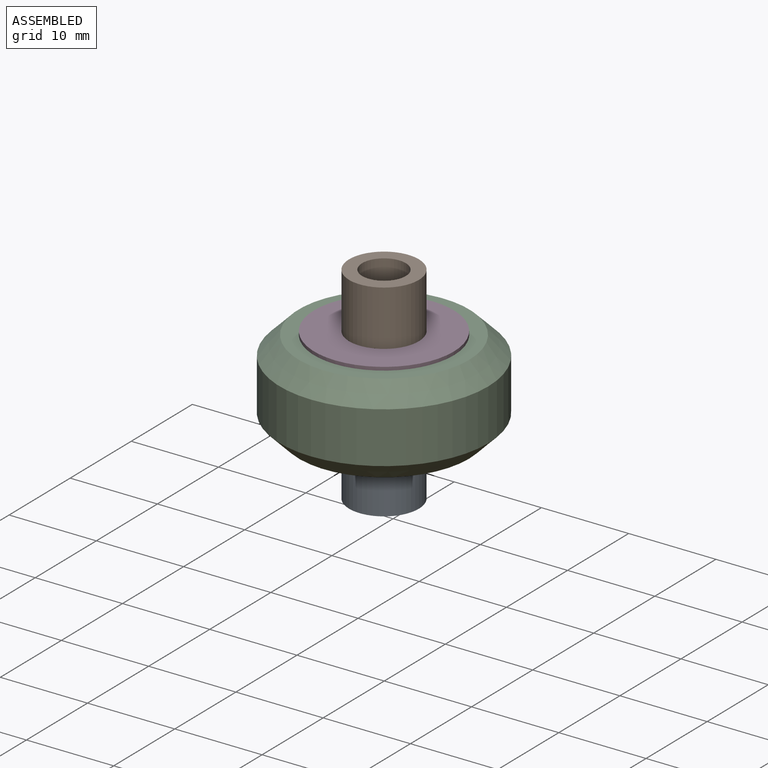
[diagram: assembled view]
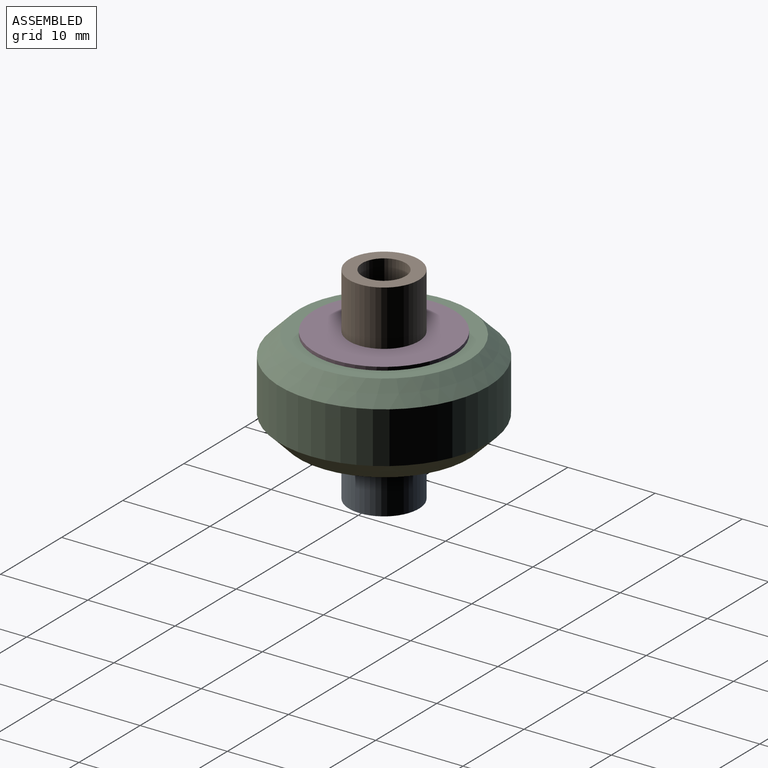
[diagram: assembled view, second angle]
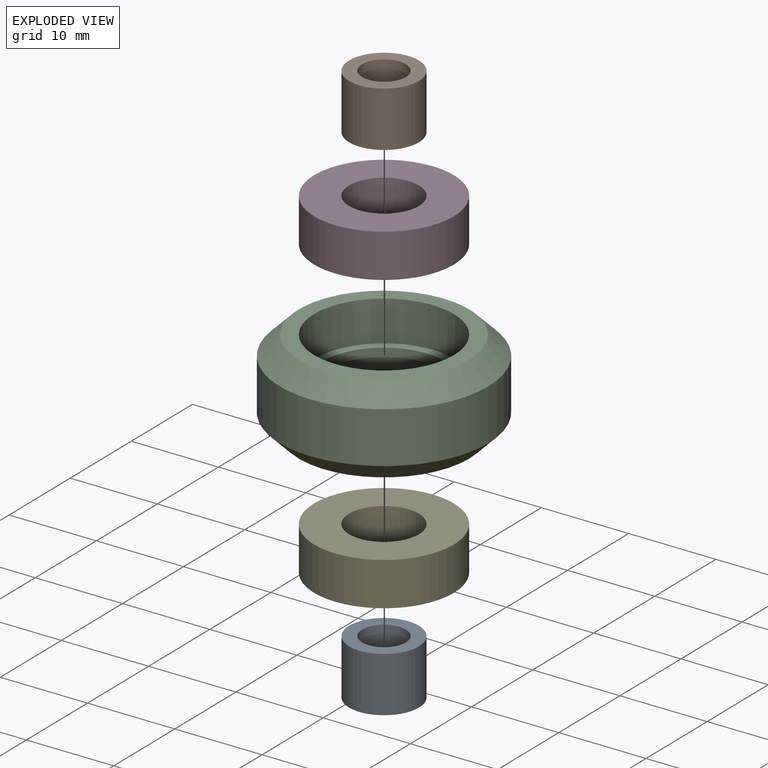
[diagram: exploded view]
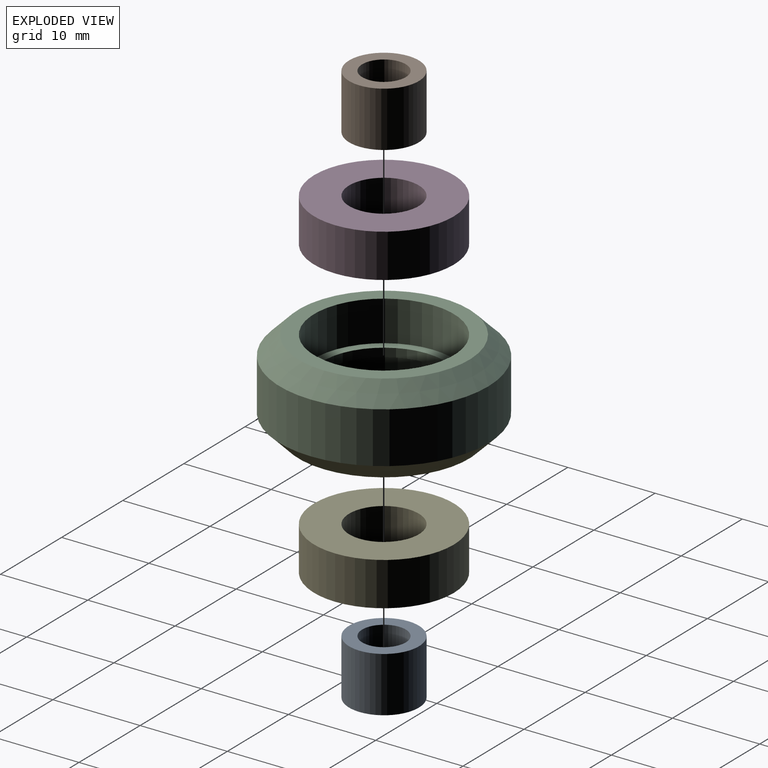
[diagram: exploded view, second angle]
ASSEMBLY  parts=5 mates=4
PART A: 4 faces, bbox 8x8x6.4 mm
  f0: cylinder r=2.5mm len=6.35mm, axis (0,0,-1), area 99.7mm2, adj f2,f3
  f1: cylinder r=4mm len=8mm, axis (0,0,-1), area 159.6mm2, adj f2,f3
  f2: plane 8x8mm, normal (0,0,1), area 30.6mm2, adj f0,f1
  f3: plane 8x8mm, normal (0,0,-1), area 30.6mm2, adj f0,f1
PART B: same geometry as A
PART C: 10 faces, bbox 23.9x23.9x10.2 mm
  f0: cylinder r=8mm len=16mm, axis (0,0,1), area 232mm2, adj f5,f8
  f1: plane 19.54x19.54mm, normal (0,0,-1), area 98.8mm2, adj f2,f6
  f2: cone r=11.95mm half-angle=45deg, axis (0,0,1), area 209.8mm2, adj f1,f3
  f3: cylinder r=11.95mm len=23.89mm, axis (0,0,1), area 441.3mm2, adj f2,f4
  f4: cone r=9.77mm half-angle=45deg, axis (0,0,-1), area 209.8mm2, adj f3,f5
  f5: plane 19.54x19.54mm, normal (0,0,1), area 98.8mm2, adj f0,f4
  f6: cylinder r=8mm len=16mm, axis (0,0,1), area 232mm2, adj f1,f9
  f7: cylinder r=7mm len=14mm, axis (0,0,-1), area 44mm2, adj f8,f9
  f8: plane 16x16mm, normal (0,0,1), area 47.1mm2, adj f0,f7
  f9: plane 16x16mm, normal (0,0,-1), area 47.1mm2, adj f6,f7
PART D: 4 faces, bbox 16x16x5 mm
  f0: cylinder r=4mm len=8mm, axis (0,0,-1), area 125.7mm2, adj f2,f3
  f1: cylinder r=8mm len=16mm, axis (0,0,-1), area 251.3mm2, adj f2,f3
  f2: plane 16x16mm, normal (0,0,1), area 150.8mm2, adj f0,f1
  f3: plane 16x16mm, normal (0,0,-1), area 150.8mm2, adj f0,f1
PART E: same geometry as D
PLACE A t=(12.82,5.93,-14.06)mm
PLACE B t=(12.82,5.93,3.29)mm
PLACE C t=(12.82,5.93,-2.21)mm
PLACE D t=(12.82,5.93,0.79)mm
PLACE E t=(12.82,5.93,-5.21)mm
MATE revolute B.f0 <-> D.f0  axis (0,0,-1) through (12.82,5.93,3.29)mm
MATE revolute E.f0 <-> C.f0  axis (0,0,1) through (12.82,5.93,-2.71)mm
MATE revolute D.f0 <-> C.f0  axis (0,0,-1) through (12.82,5.93,-1.71)mm
MATE revolute A.f0 <-> E.f0  axis (0,0,1) through (12.82,5.93,-7.71)mm
